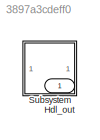
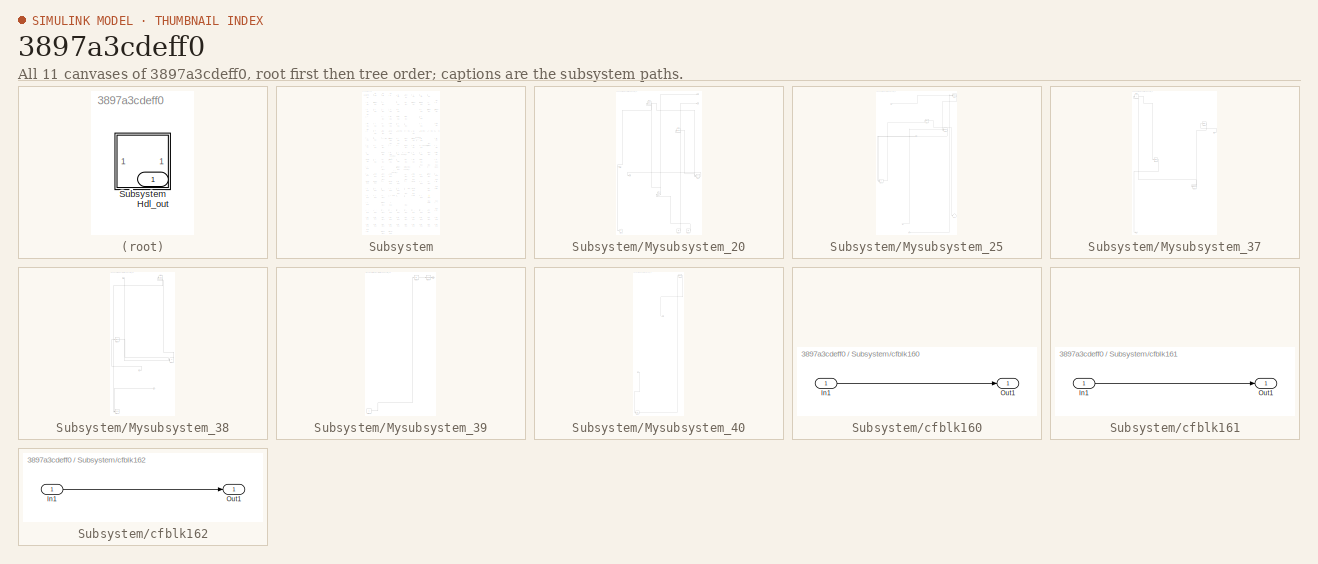
[diagram: thumbnail index - all 11 canvases of the model, root first then tree order]
MODEL slx_3897a3cdeff0
KIND model
CONFIG AbsTol = auto
CONFIG EnableMultiTasking = off
CONFIG FixedStep = auto
CONFIG MaxStep = auto
CONFIG MinStep = auto
CONFIG RelTol = 1e-3
CONFIG SampleTimeConstraint = Unconstrained
CONFIG SolverName = VariableStepAuto
CONFIG StartTime = 0.0
CONFIG StopTime = 10.0
BLOCK [Outport] Hdl_out
  OutDataTypeStr = uint8
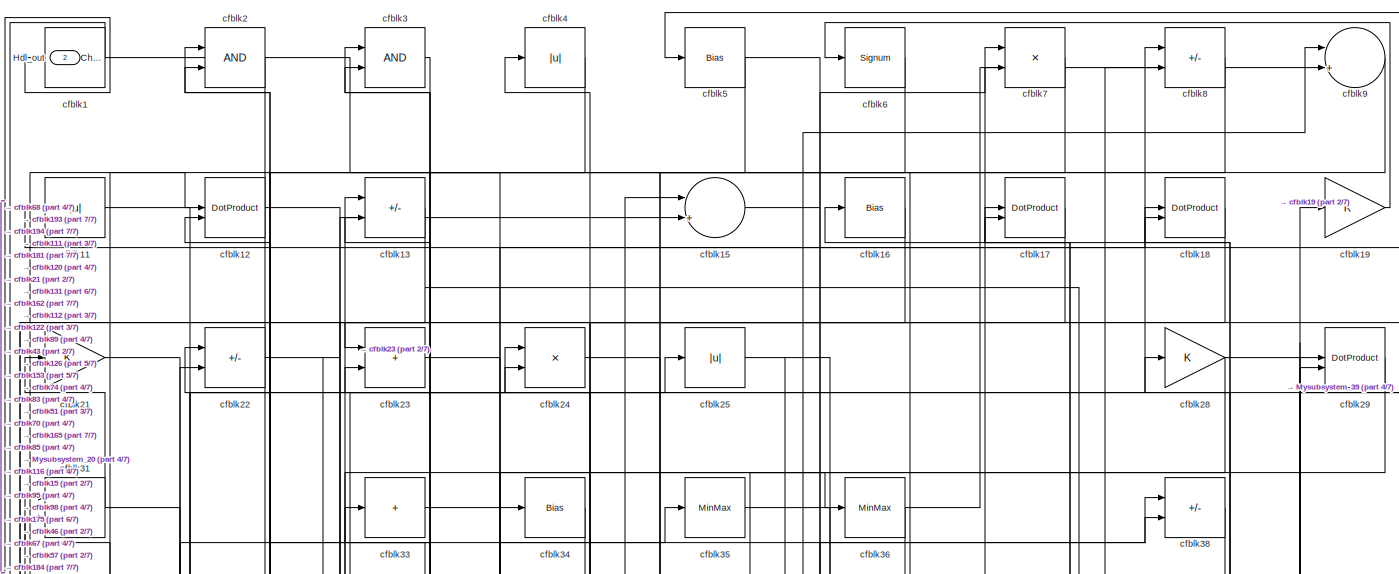
[diagram: Subsystem - part 1/7, full width, top band]
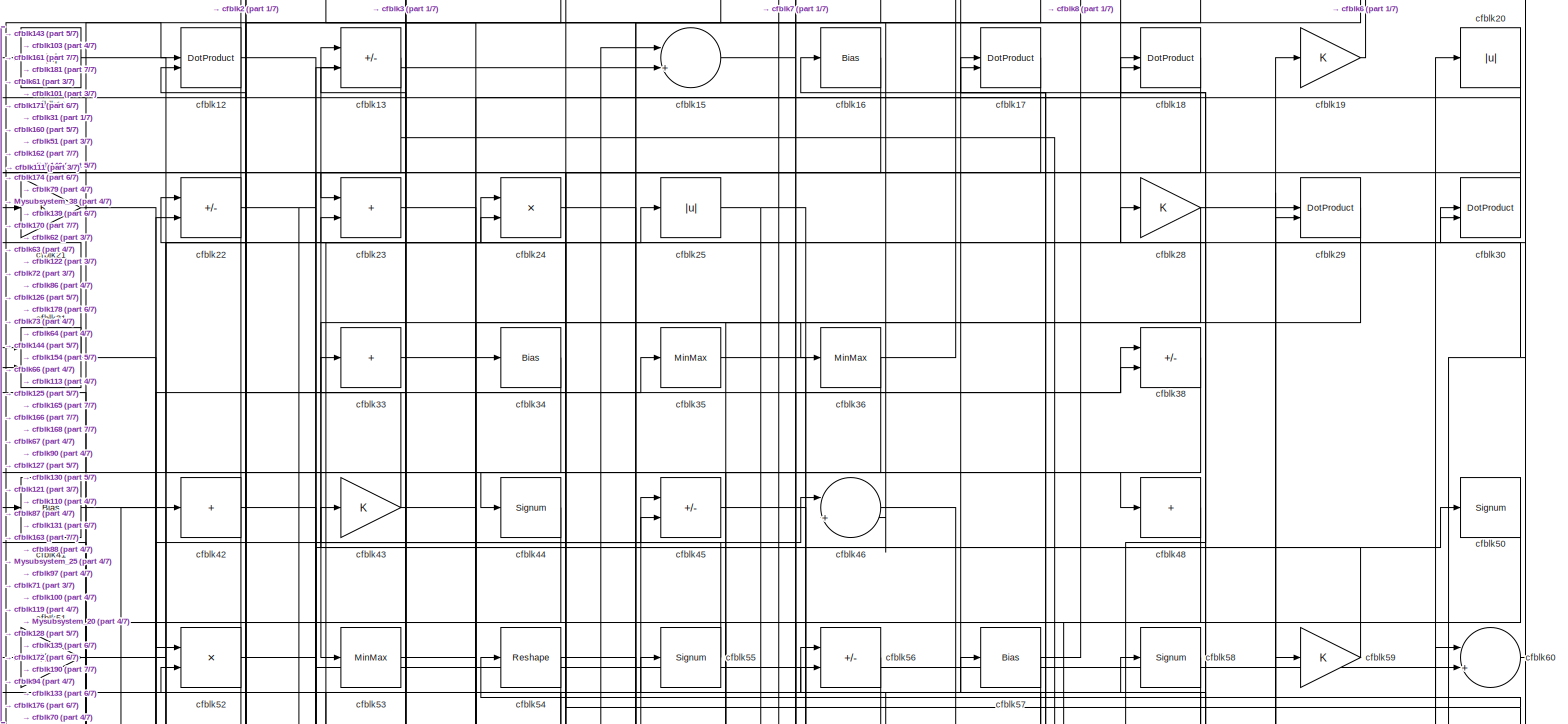
[diagram: Subsystem - part 2/7, full width, top band]
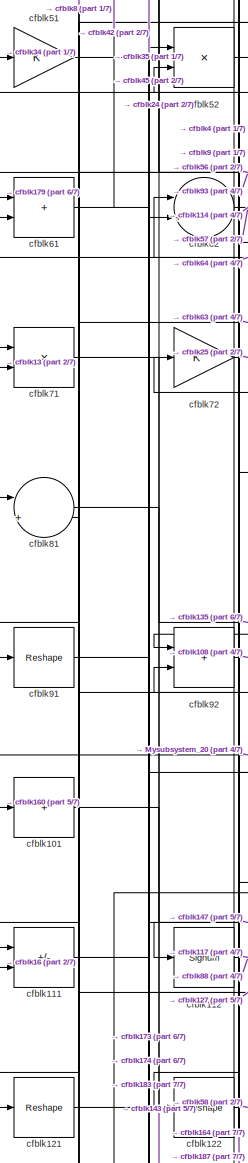
[diagram: Subsystem - part 3/7, middle left region]
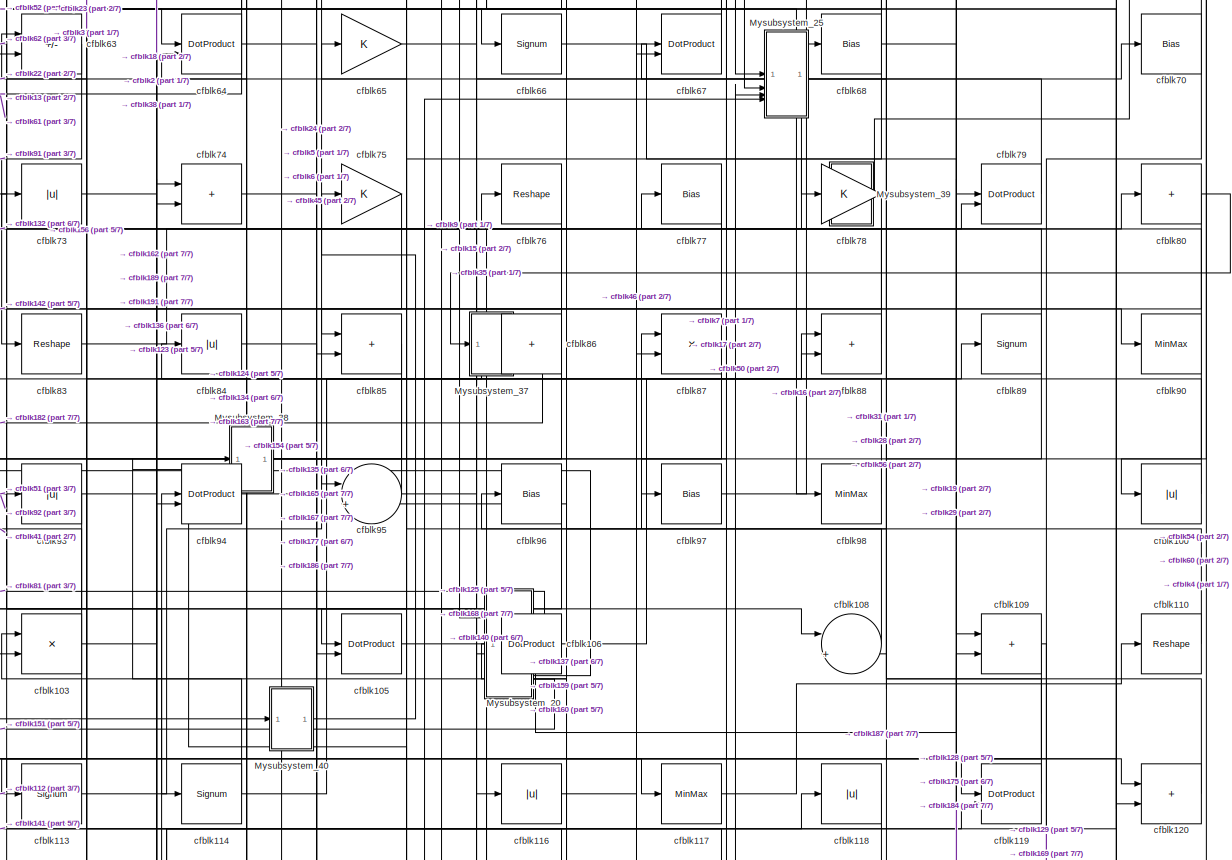
[diagram: Subsystem - part 4/7, full width, middle band]
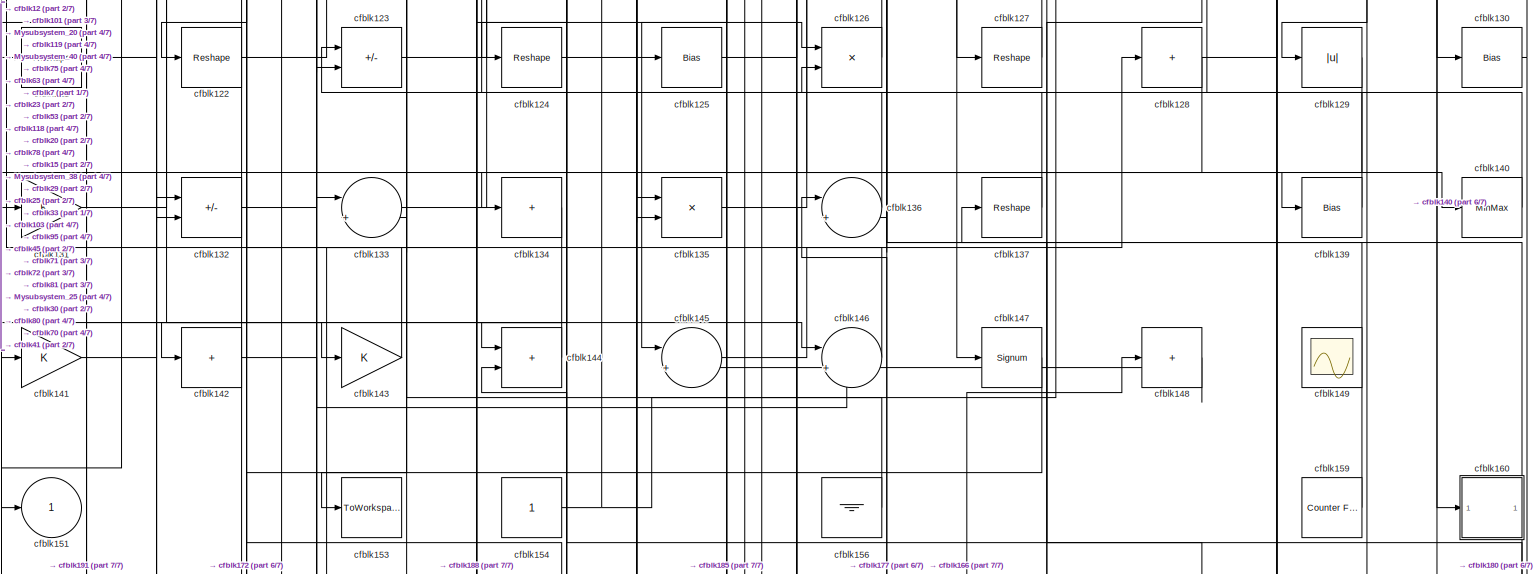
[diagram: Subsystem - part 5/7, full width, bottom band]
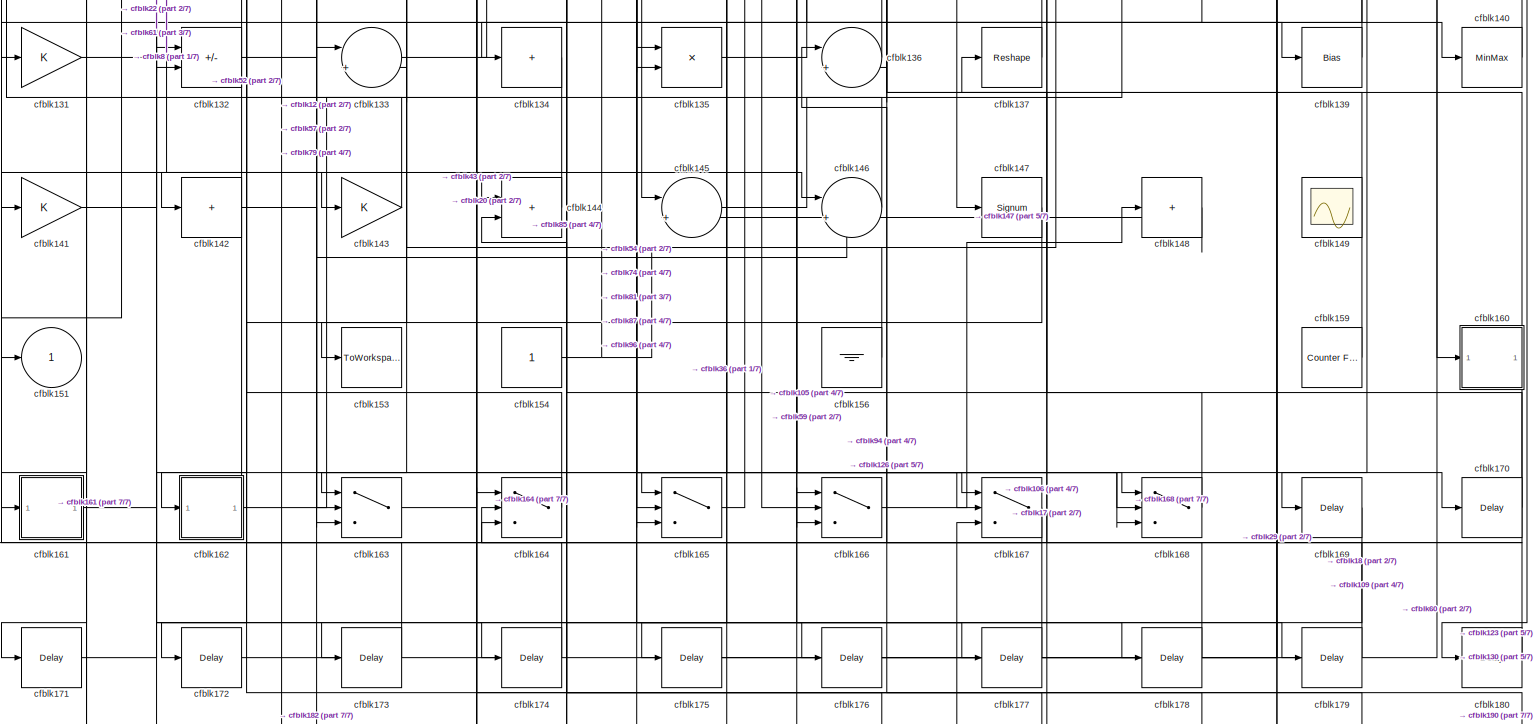
[diagram: Subsystem - part 6/7, full width, bottom band]
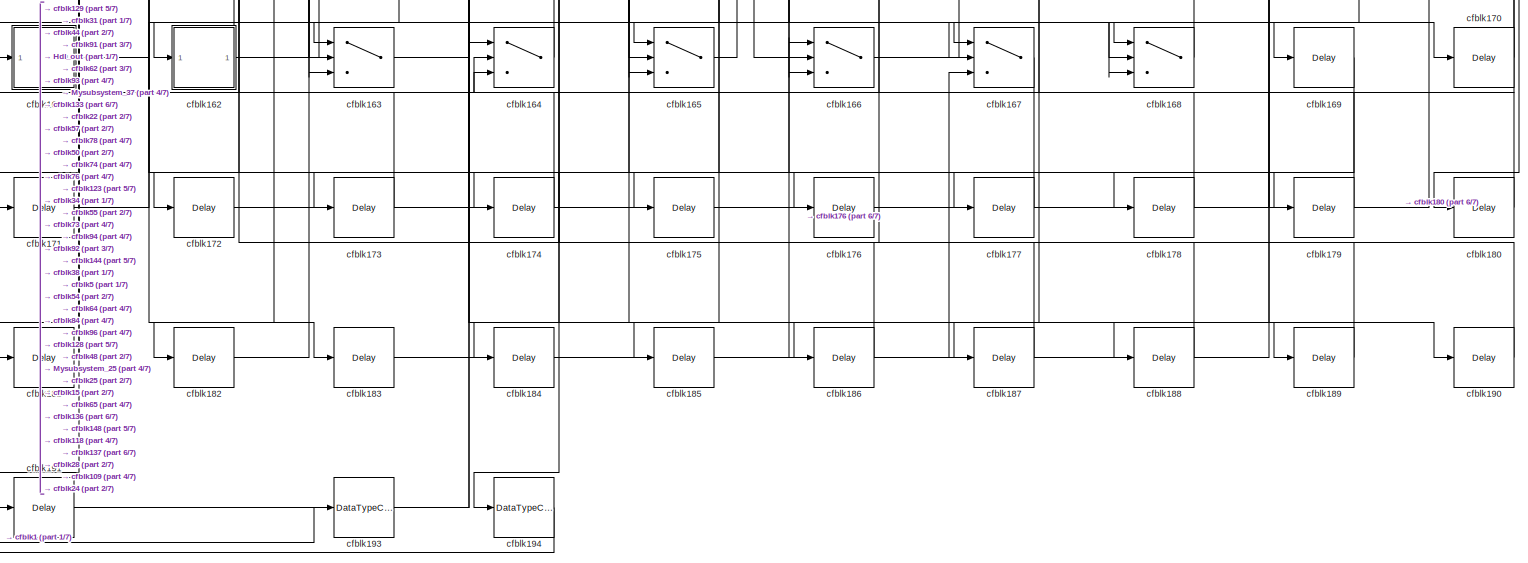
[diagram: Subsystem - part 7/7, full width, bottom band]
BLOCK [SubSystem] Subsystem
BLOCK [Outport] Subsystem/Hdl_out
  OutDataTypeStr = uint8
  Port = 2
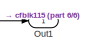
[diagram: Subsystem/Mysubsystem_20 - part 1/6, top right region]
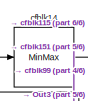
[diagram: Subsystem/Mysubsystem_20 - part 2/6, top center region]
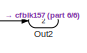
[diagram: Subsystem/Mysubsystem_20 - part 3/6, top right region]
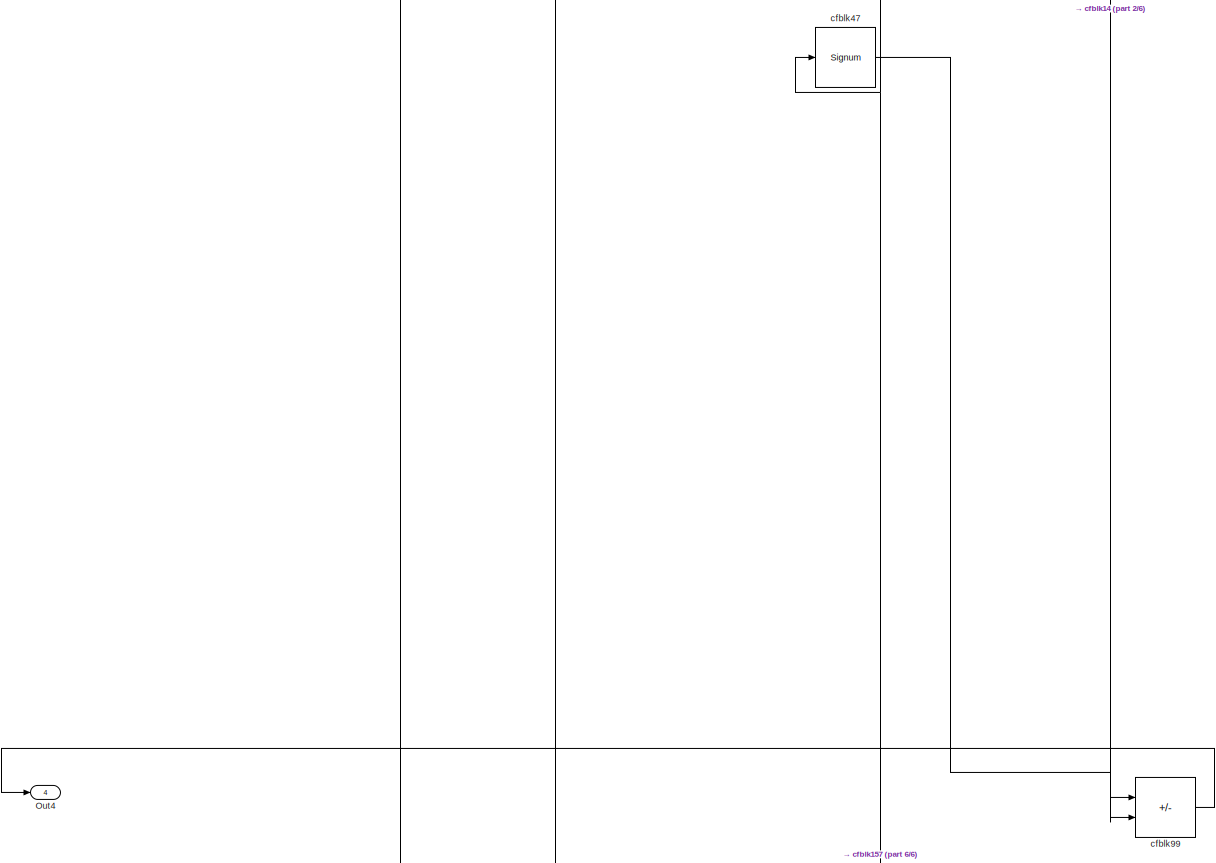
[diagram: Subsystem/Mysubsystem_20 - part 4/6, full width, middle band]
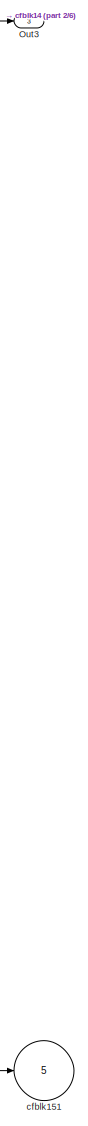
[diagram: Subsystem/Mysubsystem_20 - part 5/6, bottom left region]
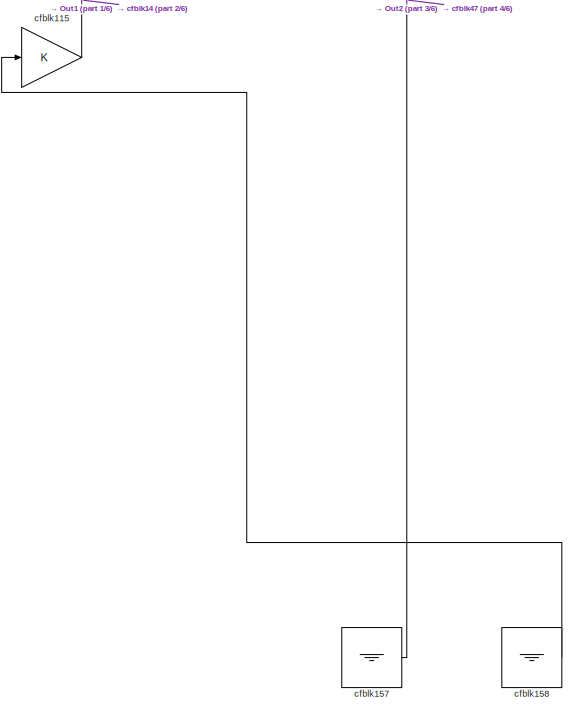
[diagram: Subsystem/Mysubsystem_20 - part 6/6, bottom center region]
BLOCK [SubSystem] Subsystem/Mysubsystem_20
  RTWFcnName = Mysubsystem_20
  RTWFcnNameOpts = User specified
  RTWFileNameOpts = Use function name
  RTWSystemCode = Reusable function
  TreatAsAtomicUnit = on
BLOCK [Outport] Subsystem/Mysubsystem_20/Out1
BLOCK [Outport] Subsystem/Mysubsystem_20/Out2
  Port = 2
BLOCK [Outport] Subsystem/Mysubsystem_20/Out3
  Port = 3
BLOCK [Outport] Subsystem/Mysubsystem_20/Out4
  Port = 4
BLOCK [Gain] Subsystem/Mysubsystem_20/cfblk115
BLOCK [MinMax] Subsystem/Mysubsystem_20/cfblk14
BLOCK [Outport] Subsystem/Mysubsystem_20/cfblk151
  Port = 5
  VectorParamsAs1DForOutWhenUnconnected = off
BLOCK [Ground] Subsystem/Mysubsystem_20/cfblk157
BLOCK [Ground] Subsystem/Mysubsystem_20/cfblk158
BLOCK [Signum] Subsystem/Mysubsystem_20/cfblk47
BLOCK [Sum] Subsystem/Mysubsystem_20/cfblk99
  IconShape = rectangular
  Inputs = +-
BLOCK [SubSystem] Subsystem/Mysubsystem_25
  RTWFcnName = Mysubsystem_25
  RTWFcnNameOpts = User specified
  RTWFileNameOpts = Use function name
  RTWSystemCode = Reusable function
  TreatAsAtomicUnit = on
BLOCK [Inport] Subsystem/Mysubsystem_25/In1
BLOCK [Inport] Subsystem/Mysubsystem_25/In2
  Port = 2
BLOCK [Inport] Subsystem/Mysubsystem_25/In3
  Port = 3
BLOCK [Inport] Subsystem/Mysubsystem_25/In4
  Port = 4
BLOCK [DotProduct] Subsystem/Mysubsystem_25/cfblk10
  OutDataTypeStr = Inherit: Inherit via internal rule
BLOCK [Sum] Subsystem/Mysubsystem_25/cfblk102
  IconShape = rectangular
  Inputs = +-
BLOCK [Terminator] Subsystem/Mysubsystem_25/cfblk150
BLOCK [Signum] Subsystem/Mysubsystem_25/cfblk37
BLOCK [DotProduct] Subsystem/Mysubsystem_25/cfblk49
  OutDataTypeStr = Inherit: Inherit via internal rule
BLOCK [SubSystem] Subsystem/Mysubsystem_37
  RTWFcnName = Mysubsystem_37
  RTWFcnNameOpts = User specified
  RTWFileNameOpts = Use function name
  RTWSystemCode = Reusable function
  TreatAsAtomicUnit = on
BLOCK [Inport] Subsystem/Mysubsystem_37/In1
BLOCK [Outport] Subsystem/Mysubsystem_37/Out1
BLOCK [MinMax] Subsystem/Mysubsystem_37/cfblk104
BLOCK [Reshape] Subsystem/Mysubsystem_37/cfblk138
BLOCK [Sum] Subsystem/Mysubsystem_37/cfblk32
  IconShape = rectangular
  Inputs = +
BLOCK [MinMax] Subsystem/Mysubsystem_37/cfblk69
BLOCK [SubSystem] Subsystem/Mysubsystem_38
  RTWFcnName = Mysubsystem_38
  RTWFcnNameOpts = User specified
  RTWFileNameOpts = Use function name
  RTWSystemCode = Reusable function
  TreatAsAtomicUnit = on
BLOCK [Inport] Subsystem/Mysubsystem_38/In1
BLOCK [Inport] Subsystem/Mysubsystem_38/In2
  Port = 2
BLOCK [Inport] Subsystem/Mysubsystem_38/In3
  Port = 3
BLOCK [Product] Subsystem/Mysubsystem_38/cfblk107
  Inputs = */
  RndMeth = Zero
  SaturateOnIntegerOverflow = on
BLOCK [Record] Subsystem/Mysubsystem_38/cfblk152
  CompatibilityTag = XY
  FileSettingsInternal = {"entries":[{"content":{"excelSettings":{"content":{},"type":"Streamout.ExcelSettings"}},"type":"Streamout.FileSettingStorage","uuid":""}],"packageUris":["http:\/\/schema.mathworks.com\/mf0\/streamout_blocks\/R2020a"],"version":"1.0"}
  Layout = [1 1]
  SignalsInternal = {"entries":[{"content":{},"type":"RecordBlkView.InputSignals","uuid":""}],"packageUris":["http:\/\/schema.mathworks.com\/mf0\/streamout_blocks\/R2020a"],"version":"1.0"}
  VisualizationBindings = {"xyplotplugin":{"info":[{"series":[],"subplotID":1}]}}
  st = -1
BLOCK [Signum] Subsystem/Mysubsystem_38/cfblk26
BLOCK [Signum] Subsystem/Mysubsystem_38/cfblk82
BLOCK [SubSystem] Subsystem/Mysubsystem_39
  RTWFcnName = Mysubsystem_39
  RTWFcnNameOpts = User specified
  RTWFileNameOpts = Use function name
  RTWSystemCode = Reusable function
  TreatAsAtomicUnit = on
BLOCK [Outport] Subsystem/Mysubsystem_39/Out1
BLOCK [Constant] Subsystem/Mysubsystem_39/cfblk155
  SampleTime = -1
BLOCK [Abs] Subsystem/Mysubsystem_39/cfblk39
  SaturateOnIntegerOverflow = off
BLOCK [Reshape] Subsystem/Mysubsystem_39/cfblk40
BLOCK [SubSystem] Subsystem/Mysubsystem_40
  RTWFcnName = Mysubsystem_40
  RTWFcnNameOpts = User specified
  RTWFileNameOpts = Use function name
  RTWSystemCode = Reusable function
  TreatAsAtomicUnit = on
BLOCK [Inport] Subsystem/Mysubsystem_40/In1
BLOCK [Outport] Subsystem/Mysubsystem_40/Out1
BLOCK [Delay] Subsystem/Mysubsystem_40/cfblk192
  InputPortMap = u0
  SampleTime = 1
BLOCK [Signum] Subsystem/Mysubsystem_40/cfblk27
BLOCK [Reference] Subsystem/cfblk1  REF=simulink/Logic and Bit
Operations/Detect
Change
  LibrarySourceBlock = hdlsllib/Logic and Bit\nOperations/Detect\nChange
  SourceBlock = simulink/Logic and Bit\nOperations/Detect\nChange
  SourceType = Detect Change
BLOCK [Abs] Subsystem/cfblk100
  OutDataTypeStr = uint8
  SaturateOnIntegerOverflow = off
BLOCK [Sum] Subsystem/cfblk101
  IconShape = rectangular
  Inputs = +
  OutDataTypeStr = uint8
BLOCK [Product] Subsystem/cfblk103
  Inputs = */
  OutDataTypeStr = uint8
  RndMeth = Zero
  SaturateOnIntegerOverflow = on
BLOCK [DotProduct] Subsystem/cfblk105
  OutDataTypeStr = uint8
BLOCK [DotProduct] Subsystem/cfblk106
  OutDataTypeStr = uint8
BLOCK [Sum] Subsystem/cfblk108
  Inputs = |++
  OutDataTypeStr = uint8
BLOCK [Sum] Subsystem/cfblk109
  IconShape = rectangular
  OutDataTypeStr = uint8
BLOCK [Abs] Subsystem/cfblk11
  OutDataTypeStr = uint8
  SaturateOnIntegerOverflow = off
BLOCK [Reshape] Subsystem/cfblk110
BLOCK [Sum] Subsystem/cfblk111
  IconShape = rectangular
  Inputs = +-
  OutDataTypeStr = uint8
BLOCK [Signum] Subsystem/cfblk112
BLOCK [Signum] Subsystem/cfblk113
BLOCK [Signum] Subsystem/cfblk114
BLOCK [Abs] Subsystem/cfblk116
  OutDataTypeStr = uint8
  SaturateOnIntegerOverflow = off
BLOCK [MinMax] Subsystem/cfblk117
  OutDataTypeStr = uint8
BLOCK [Abs] Subsystem/cfblk118
  OutDataTypeStr = uint8
  SaturateOnIntegerOverflow = off
BLOCK [DotProduct] Subsystem/cfblk119
  OutDataTypeStr = uint8
BLOCK [DotProduct] Subsystem/cfblk12
  OutDataTypeStr = uint8
BLOCK [Sum] Subsystem/cfblk120
  IconShape = rectangular
  OutDataTypeStr = uint8
BLOCK [Reshape] Subsystem/cfblk121
BLOCK [Reshape] Subsystem/cfblk122
BLOCK [Sum] Subsystem/cfblk123
  IconShape = rectangular
  Inputs = +-
  OutDataTypeStr = uint8
BLOCK [Reshape] Subsystem/cfblk124
BLOCK [Bias] Subsystem/cfblk125
  Bias = 0.0
  SaturateOnIntegerOverflow = off
BLOCK [Product] Subsystem/cfblk126
  Inputs = */
  OutDataTypeStr = uint8
  RndMeth = Zero
  SaturateOnIntegerOverflow = on
BLOCK [Reshape] Subsystem/cfblk127
BLOCK [Sum] Subsystem/cfblk128
  IconShape = rectangular
  Inputs = +
  OutDataTypeStr = uint8
BLOCK [Abs] Subsystem/cfblk129
  OutDataTypeStr = uint8
  SaturateOnIntegerOverflow = off
BLOCK [Sum] Subsystem/cfblk13
  IconShape = rectangular
  Inputs = +-
  OutDataTypeStr = uint8
BLOCK [Bias] Subsystem/cfblk130
  Bias = 0.0
  SaturateOnIntegerOverflow = off
BLOCK [Gain] Subsystem/cfblk131
  OutDataTypeStr = uint8
BLOCK [Sum] Subsystem/cfblk132
  IconShape = rectangular
  Inputs = +-
  OutDataTypeStr = uint8
BLOCK [Sum] Subsystem/cfblk133
  Inputs = |++
  OutDataTypeStr = uint8
BLOCK [Sum] Subsystem/cfblk134
  IconShape = rectangular
  Inputs = +
  OutDataTypeStr = uint8
BLOCK [Product] Subsystem/cfblk135
  Inputs = */
  OutDataTypeStr = uint8
  RndMeth = Zero
  SaturateOnIntegerOverflow = on
BLOCK [Sum] Subsystem/cfblk136
  Inputs = |++
  OutDataTypeStr = uint8
BLOCK [Reshape] Subsystem/cfblk137
BLOCK [Bias] Subsystem/cfblk139
  Bias = 0.0
  SaturateOnIntegerOverflow = off
BLOCK [MinMax] Subsystem/cfblk140
  OutDataTypeStr = uint8
BLOCK [Gain] Subsystem/cfblk141
  OutDataTypeStr = uint8
BLOCK [Sum] Subsystem/cfblk142
  IconShape = rectangular
  Inputs = +
  OutDataTypeStr = uint8
BLOCK [Gain] Subsystem/cfblk143
  OutDataTypeStr = uint8
BLOCK [Sum] Subsystem/cfblk144
  IconShape = rectangular
  OutDataTypeStr = uint8
BLOCK [Sum] Subsystem/cfblk145
  Inputs = |++
  OutDataTypeStr = uint8
BLOCK [Sum] Subsystem/cfblk146
  Inputs = |++
  OutDataTypeStr = uint8
BLOCK [Signum] Subsystem/cfblk147
BLOCK [Sum] Subsystem/cfblk148
  IconShape = rectangular
  Inputs = +
  OutDataTypeStr = uint8
BLOCK [Scope] Subsystem/cfblk149
  Floating = on
  NumInputPorts = 1
  ScopeSpecificationString = Simulink.scopes.TimeScopeBlockCfg('CurrentConfiguration', extmgr.ConfigurationSet(extmgr.Configuration('Core','General UI',true,'FigureColor',[0.156862745098039 0.156862745098039 0.156862745098039]),extmgr.Configuration('Core','Source UI',true),extmgr.Configuration('Sources','WiredSimulink',true,'DataLoggingSaveFormat','StructureWithTime','DataLoggingLimitDataPoints',true,'DataLoggingDecimation','...<+2674ch>
BLOCK [Sum] Subsystem/cfblk15
  Inputs = |++
  OutDataTypeStr = uint8
BLOCK [Outport] Subsystem/cfblk151
  OutDataTypeStr = uint8
  VectorParamsAs1DForOutWhenUnconnected = off
BLOCK [ToWorkspace] Subsystem/cfblk153
  MaxDataPoints = inf
  SampleTime = -1
  SaveFormat = Timeseries
  VariableName = simout
BLOCK [Constant] Subsystem/cfblk154
  OutDataTypeStr = uint8
  SampleTime = -1
BLOCK [Ground] Subsystem/cfblk156
BLOCK [Reference] Subsystem/cfblk159  REF=hdlsllib/Sources/Counter
Free-Running
  SourceBlock = hdlsllib/Sources/Counter\nFree-Running
  SourceType = Counter Free-Running
BLOCK [Bias] Subsystem/cfblk16
  Bias = 0.0
  SaturateOnIntegerOverflow = off
BLOCK [SubSystem] Subsystem/cfblk160
  LibrarySourceBlock = hdlsllib/Ports &\nSubsystems/Subsystem
BLOCK [Inport] Subsystem/cfblk160/In1
BLOCK [Outport] Subsystem/cfblk160/Out1
BLOCK [SubSystem] Subsystem/cfblk161
  LibrarySourceBlock = hdlsllib/Ports &\nSubsystems/Subsystem
BLOCK [Inport] Subsystem/cfblk161/In1
BLOCK [Outport] Subsystem/cfblk161/Out1
BLOCK [SubSystem] Subsystem/cfblk162
  LibrarySourceBlock = hdlsllib/Ports &\nSubsystems/Subsystem
BLOCK [Inport] Subsystem/cfblk162/In1
BLOCK [Outport] Subsystem/cfblk162/Out1
BLOCK [Switch] Subsystem/cfblk163
  InputSameDT = off
  OutDataTypeStr = uint8
  SaturateOnIntegerOverflow = off
BLOCK [Switch] Subsystem/cfblk164
  InputSameDT = off
  OutDataTypeStr = uint8
  SaturateOnIntegerOverflow = off
BLOCK [Switch] Subsystem/cfblk165
  InputSameDT = off
  OutDataTypeStr = uint8
  SaturateOnIntegerOverflow = off
BLOCK [Switch] Subsystem/cfblk166
  InputSameDT = off
  OutDataTypeStr = uint8
  SaturateOnIntegerOverflow = off
BLOCK [Switch] Subsystem/cfblk167
  InputSameDT = off
  OutDataTypeStr = uint8
  SaturateOnIntegerOverflow = off
BLOCK [Switch] Subsystem/cfblk168
  InputSameDT = off
  OutDataTypeStr = uint8
  SaturateOnIntegerOverflow = off
BLOCK [Delay] Subsystem/cfblk169
  InputPortMap = u0
  SampleTime = 1
BLOCK [DotProduct] Subsystem/cfblk17
  OutDataTypeStr = uint8
BLOCK [Delay] Subsystem/cfblk170
  InputPortMap = u0
  SampleTime = 1
BLOCK [Delay] Subsystem/cfblk171
  InputPortMap = u0
  SampleTime = 1
BLOCK [Delay] Subsystem/cfblk172
  InputPortMap = u0
  SampleTime = 1
BLOCK [Delay] Subsystem/cfblk173
  InputPortMap = u0
  SampleTime = 1
BLOCK [Delay] Subsystem/cfblk174
  InputPortMap = u0
  SampleTime = 1
BLOCK [Delay] Subsystem/cfblk175
  InputPortMap = u0
  SampleTime = 1
BLOCK [Delay] Subsystem/cfblk176
  InputPortMap = u0
  SampleTime = 1
BLOCK [Delay] Subsystem/cfblk177
  InputPortMap = u0
  SampleTime = 1
BLOCK [Delay] Subsystem/cfblk178
  InputPortMap = u0
  SampleTime = 1
BLOCK [Delay] Subsystem/cfblk179
  InputPortMap = u0
  SampleTime = 1
BLOCK [DotProduct] Subsystem/cfblk18
  OutDataTypeStr = uint8
BLOCK [Delay] Subsystem/cfblk180
  InputPortMap = u0
  SampleTime = 1
BLOCK [Delay] Subsystem/cfblk181
  InputPortMap = u0
  SampleTime = 1
BLOCK [Delay] Subsystem/cfblk182
  InputPortMap = u0
  SampleTime = 1
BLOCK [Delay] Subsystem/cfblk183
  InputPortMap = u0
  SampleTime = 1
BLOCK [Delay] Subsystem/cfblk184
  InputPortMap = u0
  SampleTime = 1
BLOCK [Delay] Subsystem/cfblk185
  InputPortMap = u0
  SampleTime = 1
BLOCK [Delay] Subsystem/cfblk186
  InputPortMap = u0
  SampleTime = 1
BLOCK [Delay] Subsystem/cfblk187
  InputPortMap = u0
  SampleTime = 1
BLOCK [Delay] Subsystem/cfblk188
  InputPortMap = u0
  SampleTime = 1
BLOCK [Delay] Subsystem/cfblk189
  InputPortMap = u0
  SampleTime = 1
BLOCK [Gain] Subsystem/cfblk19
  OutDataTypeStr = uint8
BLOCK [Delay] Subsystem/cfblk190
  InputPortMap = u0
  SampleTime = 1
BLOCK [Delay] Subsystem/cfblk191
  InputPortMap = u0
  SampleTime = 1
BLOCK [DataTypeConversion] Subsystem/cfblk193
  OutDataTypeStr = uint8
  RndMeth = Floor
  SaturateOnIntegerOverflow = off
BLOCK [DataTypeConversion] Subsystem/cfblk194
  OutDataTypeStr = uint8
  RndMeth = Floor
  SaturateOnIntegerOverflow = off
BLOCK [Logic] Subsystem/cfblk2
  AllPortsSameDT = off
  OutDataTypeStr = boolean
BLOCK [Abs] Subsystem/cfblk20
  OutDataTypeStr = uint8
  SaturateOnIntegerOverflow = off
BLOCK [Gain] Subsystem/cfblk21
  OutDataTypeStr = uint8
BLOCK [Sum] Subsystem/cfblk22
  IconShape = rectangular
  Inputs = +-
  OutDataTypeStr = uint8
BLOCK [Sum] Subsystem/cfblk23
  IconShape = rectangular
  OutDataTypeStr = uint8
BLOCK [Product] Subsystem/cfblk24
  Inputs = */
  OutDataTypeStr = uint8
  RndMeth = Zero
  SaturateOnIntegerOverflow = on
BLOCK [Abs] Subsystem/cfblk25
  OutDataTypeStr = uint8
  SaturateOnIntegerOverflow = off
BLOCK [Gain] Subsystem/cfblk28
  OutDataTypeStr = uint8
BLOCK [DotProduct] Subsystem/cfblk29
  OutDataTypeStr = uint8
BLOCK [Logic] Subsystem/cfblk3
  AllPortsSameDT = off
  OutDataTypeStr = boolean
BLOCK [DotProduct] Subsystem/cfblk30
  OutDataTypeStr = uint8
BLOCK [Sum] Subsystem/cfblk31
  IconShape = rectangular
  OutDataTypeStr = uint8
BLOCK [Sum] Subsystem/cfblk33
  IconShape = rectangular
  Inputs = +
  OutDataTypeStr = uint8
BLOCK [Bias] Subsystem/cfblk34
  Bias = 0.0
  SaturateOnIntegerOverflow = off
BLOCK [MinMax] Subsystem/cfblk35
  OutDataTypeStr = uint8
BLOCK [MinMax] Subsystem/cfblk36
  OutDataTypeStr = uint8
BLOCK [Sum] Subsystem/cfblk38
  IconShape = rectangular
  Inputs = +-
  OutDataTypeStr = uint8
BLOCK [Abs] Subsystem/cfblk4
  OutDataTypeStr = uint8
  SaturateOnIntegerOverflow = off
BLOCK [Bias] Subsystem/cfblk41
  Bias = 0.0
  SaturateOnIntegerOverflow = off
BLOCK [Sum] Subsystem/cfblk42
  IconShape = rectangular
  Inputs = +
  OutDataTypeStr = uint8
BLOCK [Gain] Subsystem/cfblk43
  OutDataTypeStr = uint8
BLOCK [Signum] Subsystem/cfblk44
BLOCK [Sum] Subsystem/cfblk45
  IconShape = rectangular
  Inputs = +-
  OutDataTypeStr = uint8
BLOCK [Sum] Subsystem/cfblk46
  Inputs = |++
  OutDataTypeStr = uint8
BLOCK [Sum] Subsystem/cfblk48
  IconShape = rectangular
  Inputs = +
  OutDataTypeStr = uint8
BLOCK [Bias] Subsystem/cfblk5
  Bias = 0.0
  SaturateOnIntegerOverflow = off
BLOCK [Signum] Subsystem/cfblk50
BLOCK [Gain] Subsystem/cfblk51
  OutDataTypeStr = uint8
BLOCK [Product] Subsystem/cfblk52
  Inputs = */
  OutDataTypeStr = uint8
  RndMeth = Zero
  SaturateOnIntegerOverflow = on
BLOCK [MinMax] Subsystem/cfblk53
  OutDataTypeStr = uint8
BLOCK [Reshape] Subsystem/cfblk54
BLOCK [Signum] Subsystem/cfblk55
BLOCK [Sum] Subsystem/cfblk56
  IconShape = rectangular
  Inputs = +-
  OutDataTypeStr = uint8
BLOCK [Bias] Subsystem/cfblk57
  Bias = 0.0
  SaturateOnIntegerOverflow = off
BLOCK [Signum] Subsystem/cfblk58
BLOCK [Gain] Subsystem/cfblk59
  OutDataTypeStr = uint8
BLOCK [Signum] Subsystem/cfblk6
BLOCK [Sum] Subsystem/cfblk60
  Inputs = |++
  OutDataTypeStr = uint8
BLOCK [Sum] Subsystem/cfblk61
  IconShape = rectangular
  OutDataTypeStr = uint8
BLOCK [Sum] Subsystem/cfblk62
  Inputs = |++
  OutDataTypeStr = uint8
BLOCK [Sum] Subsystem/cfblk63
  IconShape = rectangular
  Inputs = +-
  OutDataTypeStr = uint8
BLOCK [DotProduct] Subsystem/cfblk64
  OutDataTypeStr = uint8
BLOCK [Gain] Subsystem/cfblk65
  OutDataTypeStr = uint8
BLOCK [Signum] Subsystem/cfblk66
BLOCK [DotProduct] Subsystem/cfblk67
  OutDataTypeStr = uint8
BLOCK [Bias] Subsystem/cfblk68
  Bias = 0.0
  SaturateOnIntegerOverflow = off
BLOCK [Product] Subsystem/cfblk7
  Inputs = */
  OutDataTypeStr = uint8
  RndMeth = Zero
  SaturateOnIntegerOverflow = on
BLOCK [Bias] Subsystem/cfblk70
  Bias = 0.0
  SaturateOnIntegerOverflow = off
BLOCK [Product] Subsystem/cfblk71
  Inputs = */
  OutDataTypeStr = uint8
  RndMeth = Zero
  SaturateOnIntegerOverflow = on
BLOCK [Gain] Subsystem/cfblk72
  OutDataTypeStr = uint8
BLOCK [Abs] Subsystem/cfblk73
  OutDataTypeStr = uint8
  SaturateOnIntegerOverflow = off
BLOCK [Sum] Subsystem/cfblk74
  IconShape = rectangular
  OutDataTypeStr = uint8
BLOCK [Gain] Subsystem/cfblk75
  OutDataTypeStr = uint8
BLOCK [Reshape] Subsystem/cfblk76
BLOCK [Bias] Subsystem/cfblk77
  Bias = 0.0
  SaturateOnIntegerOverflow = off
BLOCK [Gain] Subsystem/cfblk78
  OutDataTypeStr = uint8
BLOCK [DotProduct] Subsystem/cfblk79
  OutDataTypeStr = uint8
BLOCK [Sum] Subsystem/cfblk8
  IconShape = rectangular
  Inputs = +-
  OutDataTypeStr = uint8
BLOCK [Sum] Subsystem/cfblk80
  IconShape = rectangular
  Inputs = +
  OutDataTypeStr = uint8
BLOCK [Sum] Subsystem/cfblk81
  Inputs = |++
  OutDataTypeStr = uint8
BLOCK [Reshape] Subsystem/cfblk83
BLOCK [Abs] Subsystem/cfblk84
  OutDataTypeStr = uint8
  SaturateOnIntegerOverflow = off
BLOCK [Sum] Subsystem/cfblk85
  IconShape = rectangular
  OutDataTypeStr = uint8
BLOCK [Sum] Subsystem/cfblk86
  IconShape = rectangular
  Inputs = +
  OutDataTypeStr = uint8
BLOCK [Product] Subsystem/cfblk87
  Inputs = */
  OutDataTypeStr = uint8
  RndMeth = Zero
  SaturateOnIntegerOverflow = on
BLOCK [Sum] Subsystem/cfblk88
  IconShape = rectangular
  OutDataTypeStr = uint8
BLOCK [Signum] Subsystem/cfblk89
BLOCK [Sum] Subsystem/cfblk9
  Inputs = |++
  OutDataTypeStr = uint8
BLOCK [MinMax] Subsystem/cfblk90
  OutDataTypeStr = uint8
BLOCK [Reshape] Subsystem/cfblk91
BLOCK [Sum] Subsystem/cfblk92
  IconShape = rectangular
  OutDataTypeStr = uint8
BLOCK [Abs] Subsystem/cfblk93
  OutDataTypeStr = uint8
  SaturateOnIntegerOverflow = off
BLOCK [DotProduct] Subsystem/cfblk94
  OutDataTypeStr = uint8
BLOCK [Sum] Subsystem/cfblk95
  Inputs = |++
  OutDataTypeStr = uint8
BLOCK [Bias] Subsystem/cfblk96
  Bias = 0.0
  SaturateOnIntegerOverflow = off
BLOCK [Bias] Subsystem/cfblk97
  Bias = 0.0
  SaturateOnIntegerOverflow = off
BLOCK [MinMax] Subsystem/cfblk98
  OutDataTypeStr = uint8
NET Subsystem/Mysubsystem_20/cfblk115:1 -> Subsystem/Mysubsystem_20/Out1:1, Subsystem/Mysubsystem_20/cfblk14:1
NET Subsystem/Mysubsystem_20/cfblk14:1 -> Subsystem/Mysubsystem_20/Out3:1, Subsystem/Mysubsystem_20/cfblk151:1, Subsystem/Mysubsystem_20/cfblk99:1
NET Subsystem/Mysubsystem_20/cfblk157:1 -> Subsystem/Mysubsystem_20/Out2:1, Subsystem/Mysubsystem_20/cfblk47:1
LINE Subsystem/Mysubsystem_20/cfblk158:1 -> Subsystem/Mysubsystem_20/cfblk115:1
LINE Subsystem/Mysubsystem_20/cfblk47:1 -> Subsystem/Mysubsystem_20/cfblk99:2
LINE Subsystem/Mysubsystem_20/cfblk99:1 -> Subsystem/Mysubsystem_20/Out4:1
LINE Subsystem/Mysubsystem_20:1 -> Subsystem/cfblk9:1
LINE Subsystem/Mysubsystem_20:2 -> Subsystem/cfblk19:1
LINE Subsystem/Mysubsystem_20:3 -> Subsystem/cfblk81:1
LINE Subsystem/Mysubsystem_20:4 -> Subsystem/cfblk92:1
LINE Subsystem/Mysubsystem_20:5 -> Subsystem/cfblk151:1
LINE Subsystem/Mysubsystem_25/In1:1 -> Subsystem/Mysubsystem_25/cfblk10:2
LINE Subsystem/Mysubsystem_25/In2:1 -> Subsystem/Mysubsystem_25/cfblk102:1
LINE Subsystem/Mysubsystem_25/In3:1 -> Subsystem/Mysubsystem_25/cfblk49:1
LINE Subsystem/Mysubsystem_25/In4:1 -> Subsystem/Mysubsystem_25/cfblk10:1
LINE Subsystem/Mysubsystem_25/cfblk102:1 -> Subsystem/Mysubsystem_25/cfblk37:1
LINE Subsystem/Mysubsystem_25/cfblk10:1 -> Subsystem/Mysubsystem_25/cfblk49:2
LINE Subsystem/Mysubsystem_25/cfblk37:1 -> Subsystem/Mysubsystem_25/cfblk150:1
LINE Subsystem/Mysubsystem_25/cfblk49:1 -> Subsystem/Mysubsystem_25/cfblk102:2
LINE Subsystem/Mysubsystem_37/In1:1 -> Subsystem/Mysubsystem_37/cfblk69:1
LINE Subsystem/Mysubsystem_37/cfblk104:1 -> Subsystem/Mysubsystem_37/Out1:1
LINE Subsystem/Mysubsystem_37/cfblk138:1 -> Subsystem/Mysubsystem_37/cfblk32:1
LINE Subsystem/Mysubsystem_37/cfblk32:1 -> Subsystem/Mysubsystem_37/cfblk104:1
LINE Subsystem/Mysubsystem_37/cfblk69:1 -> Subsystem/Mysubsystem_37/cfblk138:1
LINE Subsystem/Mysubsystem_37:1 -> Subsystem/cfblk182:1
LINE Subsystem/Mysubsystem_38/In1:1 -> Subsystem/Mysubsystem_38/cfblk107:2
LINE Subsystem/Mysubsystem_38/In2:1 -> Subsystem/Mysubsystem_38/cfblk82:1
LINE Subsystem/Mysubsystem_38/In3:1 -> Subsystem/Mysubsystem_38/cfblk152:1
LINE Subsystem/Mysubsystem_38/cfblk107:1 -> Subsystem/Mysubsystem_38/cfblk26:1
LINE Subsystem/Mysubsystem_38/cfblk26:1 -> Subsystem/Mysubsystem_38/cfblk152:2
LINE Subsystem/Mysubsystem_38/cfblk82:1 -> Subsystem/Mysubsystem_38/cfblk107:1
LINE Subsystem/Mysubsystem_39/cfblk155:1 -> Subsystem/Mysubsystem_39/cfblk39:1
LINE Subsystem/Mysubsystem_39/cfblk39:1 -> Subsystem/Mysubsystem_39/cfblk40:1
LINE Subsystem/Mysubsystem_39/cfblk40:1 -> Subsystem/Mysubsystem_39/Out1:1
NET Subsystem/Mysubsystem_39:1 -> Subsystem/cfblk3:2, Subsystem/cfblk5:1
LINE Subsystem/Mysubsystem_40/In1:1 -> Subsystem/Mysubsystem_40/cfblk192:1
LINE Subsystem/Mysubsystem_40/cfblk192:1 -> Subsystem/Mysubsystem_40/cfblk27:1
LINE Subsystem/Mysubsystem_40/cfblk27:1 -> Subsystem/Mysubsystem_40/Out1:1
LINE Subsystem/Mysubsystem_40:1 -> Subsystem/cfblk75:1
LINE Subsystem/cfblk100:1 -> Subsystem/cfblk28:1
NET Subsystem/cfblk101:1 -> Subsystem/cfblk143:1, Subsystem/cfblk45:2
NET Subsystem/cfblk103:1 -> Subsystem/cfblk123:2, Subsystem/cfblk41:1, Subsystem/cfblk86:1
LINE Subsystem/cfblk105:1 -> Subsystem/cfblk140:1
LINE Subsystem/cfblk106:1 -> Subsystem/cfblk89:1
NET Subsystem/cfblk108:1 -> Subsystem/cfblk73:1, Subsystem/cfblk87:1
NET Subsystem/cfblk109:1 -> Subsystem/cfblk136:2, Subsystem/cfblk169:1
LINE Subsystem/cfblk110:1 -> Subsystem/cfblk56:1
LINE Subsystem/cfblk111:1 -> Subsystem/cfblk35:1
NET Subsystem/cfblk112:1 -> Subsystem/cfblk117:1, Subsystem/cfblk88:2
LINE Subsystem/cfblk113:1 -> Subsystem/cfblk45:1
NET Subsystem/cfblk114:1 -> Subsystem/Mysubsystem_38:2, Subsystem/cfblk88:1
LINE Subsystem/cfblk116:1 -> Subsystem/cfblk119:1
LINE Subsystem/cfblk117:1 -> Subsystem/cfblk110:1
LINE Subsystem/cfblk118:1 -> Subsystem/cfblk187:1
NET Subsystem/cfblk119:1 -> Subsystem/cfblk56:2, Subsystem/cfblk96:1
LINE Subsystem/cfblk11:1 -> Subsystem/cfblk48:1
LINE Subsystem/cfblk120:1 -> Subsystem/cfblk67:1
LINE Subsystem/cfblk121:1 -> Subsystem/cfblk62:2
LINE Subsystem/cfblk122:1 -> Subsystem/cfblk58:1
NET Subsystem/cfblk123:1 -> Subsystem/cfblk118:1, Subsystem/cfblk188:1
LINE Subsystem/cfblk124:1 -> Subsystem/cfblk145:1
LINE Subsystem/cfblk125:1 -> Subsystem/cfblk70:1
LINE Subsystem/cfblk126:1 -> Subsystem/cfblk33:1
NET Subsystem/cfblk127:1 -> Subsystem/cfblk72:1, Subsystem/cfblk81:2
NET Subsystem/cfblk128:1 -> Subsystem/Mysubsystem_38:3, Subsystem/cfblk185:1, Subsystem/cfblk30:1, Subsystem/cfblk80:1
LINE Subsystem/cfblk129:1 -> Subsystem/cfblk191:1
LINE Subsystem/cfblk12:1 -> Subsystem/cfblk139:1
NET Subsystem/cfblk130:1 -> Subsystem/cfblk180:1, Subsystem/cfblk30:2
LINE Subsystem/cfblk131:1 -> Subsystem/cfblk8:1
LINE Subsystem/cfblk132:1 -> Subsystem/cfblk79:2
LINE Subsystem/cfblk133:1 -> Subsystem/cfblk20:1
LINE Subsystem/cfblk134:1 -> Subsystem/cfblk171:1
NET Subsystem/cfblk135:1 -> Subsystem/cfblk179:1, Subsystem/cfblk59:1
LINE Subsystem/cfblk136:1 -> Subsystem/cfblk94:1
LINE Subsystem/cfblk137:1 -> Subsystem/cfblk106:1
LINE Subsystem/cfblk139:1 -> Subsystem/cfblk18:1
NET Subsystem/cfblk13:1 -> Subsystem/Mysubsystem_25:1, Subsystem/cfblk71:2
LINE Subsystem/cfblk140:1 -> Subsystem/cfblk123:1
LINE Subsystem/cfblk141:1 -> Subsystem/cfblk119:2
NET Subsystem/cfblk142:1 -> Subsystem/Mysubsystem_40:1, Subsystem/cfblk146:2
LINE Subsystem/cfblk143:1 -> Subsystem/cfblk12:1
LINE Subsystem/cfblk144:1 -> Subsystem/cfblk141:1
LINE Subsystem/cfblk145:1 -> Subsystem/cfblk128:1
LINE Subsystem/cfblk146:1 -> Subsystem/cfblk12:2
LINE Subsystem/cfblk147:1 -> Subsystem/cfblk172:1
LINE Subsystem/cfblk148:1 -> Subsystem/cfblk145:2
NET Subsystem/cfblk154:1 -> Subsystem/Mysubsystem_25:3, Subsystem/cfblk15:1
LINE Subsystem/cfblk156:1 -> Subsystem/cfblk63:1
LINE Subsystem/cfblk159:1 -> Subsystem/cfblk103:1
NET Subsystem/cfblk15:1 -> Subsystem/cfblk168:3, Subsystem/cfblk67:2, Subsystem/cfblk7:2, Subsystem/cfblk90:1
LINE Subsystem/cfblk160/In1:1 -> Subsystem/cfblk160/Out1:1
NET Subsystem/cfblk160:1 -> Subsystem/cfblk101:1, Subsystem/cfblk95:2
LINE Subsystem/cfblk161/In1:1 -> Subsystem/cfblk161/Out1:1
NET Subsystem/cfblk161:1 -> Subsystem/cfblk167:1, Subsystem/cfblk176:1
LINE Subsystem/cfblk162/In1:1 -> Subsystem/cfblk162/Out1:1
NET Subsystem/cfblk162:1 -> Subsystem/Hdl_out:1, Subsystem/cfblk50:1, Subsystem/cfblk74:1
LINE Subsystem/cfblk163:1 -> Subsystem/cfblk55:1
LINE Subsystem/cfblk164:1 -> Subsystem/cfblk92:2
LINE Subsystem/cfblk165:1 -> Subsystem/Mysubsystem_25:4
LINE Subsystem/cfblk166:1 -> Subsystem/cfblk148:1
LINE Subsystem/cfblk167:1 -> Subsystem/cfblk164:2
LINE Subsystem/cfblk168:1 -> Subsystem/cfblk137:1
LINE Subsystem/cfblk169:1 -> Subsystem/cfblk194:1
LINE Subsystem/cfblk16:1 -> Subsystem/cfblk111:2
LINE Subsystem/cfblk170:1 -> Subsystem/cfblk24:2
LINE Subsystem/cfblk171:1 -> Subsystem/cfblk22:2
LINE Subsystem/cfblk172:1 -> Subsystem/cfblk29:1
LINE Subsystem/cfblk173:1 -> Subsystem/cfblk132:1
LINE Subsystem/cfblk174:1 -> Subsystem/cfblk52:2
LINE Subsystem/cfblk175:1 -> Subsystem/cfblk79:1
LINE Subsystem/cfblk176:1 -> Subsystem/cfblk60:1
LINE Subsystem/cfblk177:1 -> Subsystem/cfblk126:2
LINE Subsystem/cfblk178:1 -> Subsystem/cfblk17:2
LINE Subsystem/cfblk179:1 -> Subsystem/cfblk61:1
LINE Subsystem/cfblk17:1 -> Subsystem/cfblk44:1
LINE Subsystem/cfblk180:1 -> Subsystem/cfblk164:3
LINE Subsystem/cfblk181:1 -> Subsystem/cfblk31:2
LINE Subsystem/cfblk182:1 -> Subsystem/cfblk133:1
LINE Subsystem/cfblk183:1 -> Subsystem/cfblk166:1
LINE Subsystem/cfblk184:1 -> Subsystem/cfblk109:2
LINE Subsystem/cfblk185:1 -> Subsystem/cfblk167:3
LINE Subsystem/cfblk186:1 -> Subsystem/cfblk64:2
LINE Subsystem/cfblk187:1 -> Subsystem/cfblk62:1
LINE Subsystem/cfblk188:1 -> Subsystem/cfblk144:2
LINE Subsystem/cfblk189:1 -> Subsystem/cfblk164:1
LINE Subsystem/cfblk18:1 -> Subsystem/cfblk63:2
LINE Subsystem/cfblk190:1 -> Subsystem/cfblk136:1
LINE Subsystem/cfblk191:1 -> Subsystem/cfblk94:2
LINE Subsystem/cfblk193:1 -> Subsystem/cfblk34:1
LINE Subsystem/cfblk194:1 -> Subsystem/cfblk1:1
LINE Subsystem/cfblk19:1 -> Subsystem/cfblk6:1
LINE Subsystem/cfblk1:1 -> Subsystem/cfblk193:1
LINE Subsystem/cfblk20:1 -> Subsystem/cfblk144:1
LINE Subsystem/cfblk21:1 -> Subsystem/cfblk52:1
NET Subsystem/cfblk22:1 -> Subsystem/Mysubsystem_38:1, Subsystem/cfblk15:2, Subsystem/cfblk170:1
LINE Subsystem/cfblk23:1 -> Subsystem/cfblk146:1
LINE Subsystem/cfblk24:1 -> Subsystem/cfblk66:1
NET Subsystem/cfblk25:1 -> Subsystem/cfblk130:1, Subsystem/cfblk166:2
NET Subsystem/cfblk28:1 -> Subsystem/cfblk190:1, Subsystem/cfblk53:1
LINE Subsystem/cfblk29:1 -> Subsystem/cfblk125:1
LINE Subsystem/cfblk2:1 -> Subsystem/cfblk74:2
LINE Subsystem/cfblk30:1 -> Subsystem/cfblk11:1
NET Subsystem/cfblk31:1 -> Subsystem/cfblk120:1, Subsystem/cfblk21:1
LINE Subsystem/cfblk33:1 -> Subsystem/cfblk36:1
LINE Subsystem/cfblk34:1 -> Subsystem/cfblk51:1
LINE Subsystem/cfblk35:1 -> Subsystem/cfblk98:1
NET Subsystem/cfblk36:1 -> Subsystem/cfblk175:1, Subsystem/cfblk9:2
LINE Subsystem/cfblk38:1 -> Subsystem/cfblk184:1
LINE Subsystem/cfblk3:1 -> Subsystem/cfblk23:1
LINE Subsystem/cfblk41:1 -> Subsystem/cfblk160:1
LINE Subsystem/cfblk42:1 -> Subsystem/cfblk60:2
NET Subsystem/cfblk43:1 -> Subsystem/cfblk178:1, Subsystem/cfblk2:1
LINE Subsystem/cfblk44:1 -> Subsystem/cfblk161:1
LINE Subsystem/cfblk45:1 -> Subsystem/cfblk127:1
LINE Subsystem/cfblk46:1 -> Subsystem/cfblk87:2
NET Subsystem/cfblk48:1 -> Subsystem/cfblk165:1, Subsystem/cfblk181:1
LINE Subsystem/cfblk4:1 -> Subsystem/cfblk122:1
NET Subsystem/cfblk50:1 -> Subsystem/Mysubsystem_25:2, Subsystem/cfblk166:3
NET Subsystem/cfblk51:1 -> Subsystem/cfblk24:1, Subsystem/cfblk93:1
NET Subsystem/cfblk52:1 -> Subsystem/cfblk46:1, Subsystem/cfblk64:1
LINE Subsystem/cfblk53:1 -> Subsystem/cfblk126:1
NET Subsystem/cfblk54:1 -> Subsystem/cfblk133:2, Subsystem/cfblk168:2
LINE Subsystem/cfblk55:1 -> Subsystem/cfblk13:2
LINE Subsystem/cfblk56:1 -> Subsystem/cfblk121:1
NET Subsystem/cfblk57:1 -> Subsystem/cfblk131:1, Subsystem/cfblk163:3, Subsystem/cfblk8:2
LINE Subsystem/cfblk58:1 -> Subsystem/cfblk71:1
LINE Subsystem/cfblk59:1 -> Subsystem/cfblk43:1
NET Subsystem/cfblk5:1 -> Subsystem/cfblk116:1, Subsystem/cfblk165:2
LINE Subsystem/cfblk60:1 -> Subsystem/cfblk100:1
NET Subsystem/cfblk61:1 -> Subsystem/cfblk173:1, Subsystem/cfblk174:1, Subsystem/cfblk42:1
NET Subsystem/cfblk62:1 -> Subsystem/cfblk114:1, Subsystem/cfblk57:1
NET Subsystem/cfblk63:1 -> Subsystem/cfblk83:1, Subsystem/cfblk91:1
NET Subsystem/cfblk64:1 -> Subsystem/cfblk13:1, Subsystem/cfblk167:2, Subsystem/cfblk61:2
LINE Subsystem/cfblk65:1 -> Subsystem/cfblk168:1
LINE Subsystem/cfblk66:1 -> Subsystem/cfblk109:1
LINE Subsystem/cfblk67:1 -> Subsystem/cfblk7:1
NET Subsystem/cfblk68:1 -> Subsystem/cfblk105:1, Subsystem/cfblk120:2, Subsystem/cfblk31:1, Subsystem/cfblk78:1
LINE Subsystem/cfblk6:1 -> Subsystem/cfblk85:2
NET Subsystem/cfblk70:1 -> Subsystem/cfblk129:1, Subsystem/cfblk4:1, Subsystem/cfblk54:1
LINE Subsystem/cfblk71:1 -> Subsystem/cfblk147:1
LINE Subsystem/cfblk72:1 -> Subsystem/cfblk25:1
NET Subsystem/cfblk73:1 -> Subsystem/cfblk189:1, Subsystem/cfblk18:2
LINE Subsystem/cfblk74:1 -> Subsystem/cfblk177:1
LINE Subsystem/cfblk75:1 -> Subsystem/cfblk142:1
LINE Subsystem/cfblk76:1 -> Subsystem/cfblk163:1
LINE Subsystem/cfblk77:1 -> Subsystem/cfblk85:1
NET Subsystem/cfblk78:1 -> Subsystem/cfblk124:1, Subsystem/cfblk163:2
LINE Subsystem/cfblk79:1 -> Subsystem/cfblk22:1
NET Subsystem/cfblk7:1 -> Subsystem/cfblk153:1, Subsystem/cfblk46:2
NET Subsystem/cfblk80:1 -> Subsystem/Mysubsystem_37:1, Subsystem/cfblk97:1
LINE Subsystem/cfblk81:1 -> Subsystem/cfblk135:1
NET Subsystem/cfblk83:1 -> Subsystem/cfblk38:1, Subsystem/cfblk76:1
LINE Subsystem/cfblk84:1 -> Subsystem/cfblk186:1
LINE Subsystem/cfblk85:1 -> Subsystem/cfblk134:1
NET Subsystem/cfblk86:1 -> Subsystem/cfblk113:1, Subsystem/cfblk23:2
NET Subsystem/cfblk87:1 -> Subsystem/cfblk103:2, Subsystem/cfblk135:2
LINE Subsystem/cfblk88:1 -> Subsystem/cfblk17:1
NET Subsystem/cfblk89:1 -> Subsystem/cfblk105:2, Subsystem/cfblk2:2, Subsystem/cfblk68:1
LINE Subsystem/cfblk8:1 -> Subsystem/cfblk111:1
NET Subsystem/cfblk90:1 -> Subsystem/cfblk108:2, Subsystem/cfblk65:1, Subsystem/cfblk77:1
LINE Subsystem/cfblk91:1 -> Subsystem/cfblk183:1
LINE Subsystem/cfblk92:1 -> Subsystem/cfblk108:1
NET Subsystem/cfblk93:1 -> Subsystem/cfblk162:1, Subsystem/cfblk95:1
NET Subsystem/cfblk94:1 -> Subsystem/cfblk106:2, Subsystem/cfblk29:2
NET Subsystem/cfblk95:1 -> Subsystem/cfblk38:2, Subsystem/cfblk84:1
NET Subsystem/cfblk96:1 -> Subsystem/cfblk132:2, Subsystem/cfblk165:3
LINE Subsystem/cfblk97:1 -> Subsystem/cfblk16:1
LINE Subsystem/cfblk98:1 -> Subsystem/cfblk3:1
LINE Subsystem/cfblk9:1 -> Subsystem/cfblk112:1
note: NET lines group one-source signal fan-out (src -> all destinations, sorted); 1:1 wires keep LINE
